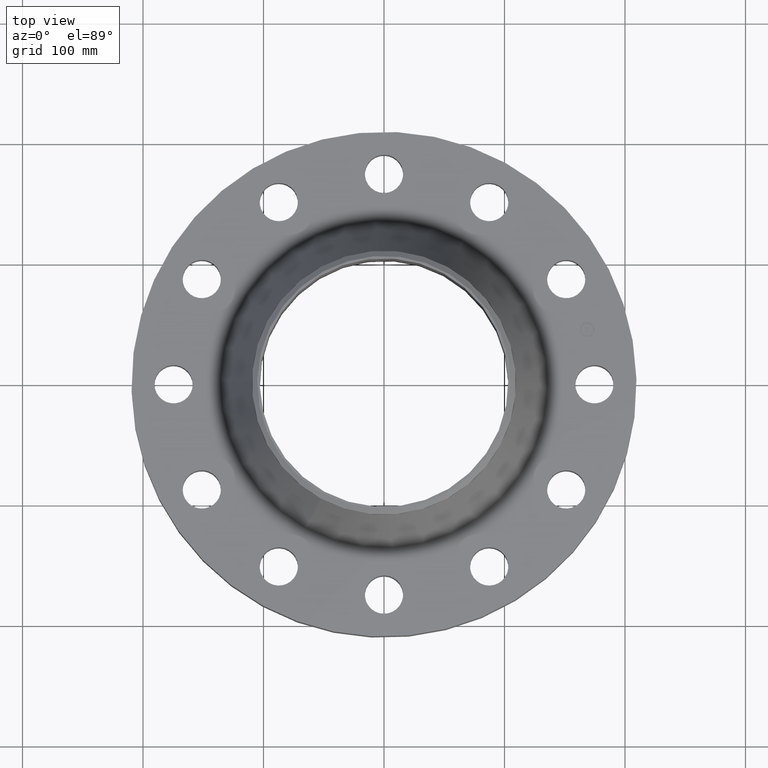
[diagram: clean part render]
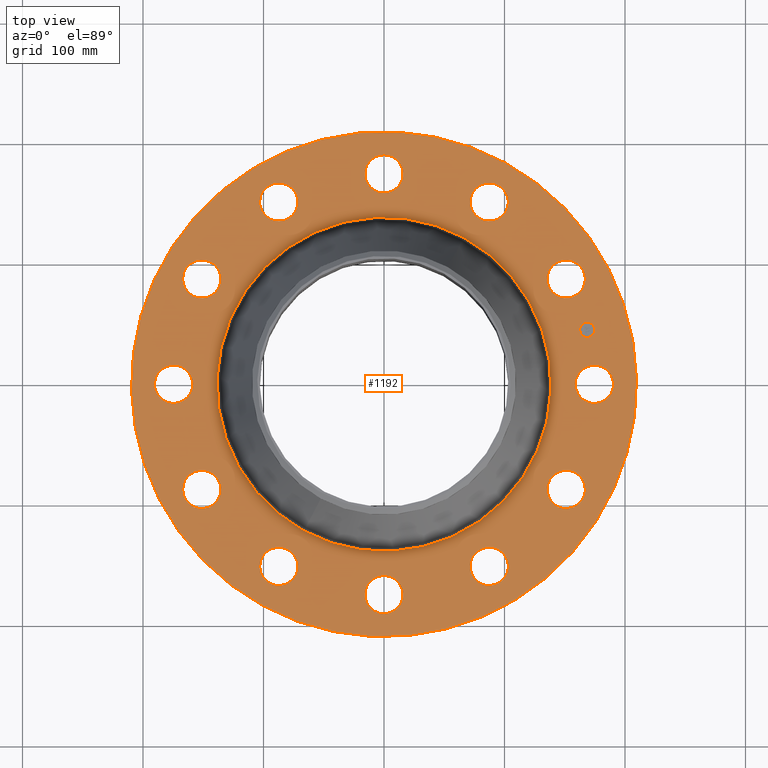
[diagram: same view with one face highlighted and labeled with its STEP entity id]
A machine part, top view. The second image highlights one B-rep face of the part: STEP entity #1192.
In plain terms, the highlighted planar face has unit normal (0, 0, -1).
Its self-contained STEP definition (entity closure, byte-faithful):
#65=AXIS2_PLACEMENT_3D('Circle Axis2P3D',#63,#64,$) ;
#82=AXIS2_PLACEMENT_3D('Circle Axis2P3D',#80,#81,$) ;
#115=AXIS2_PLACEMENT_3D('Circle Axis2P3D',#113,#114,$) ;
#139=AXIS2_PLACEMENT_3D('Circle Axis2P3D',#137,#138,$) ;
#156=AXIS2_PLACEMENT_3D('Circle Axis2P3D',#154,#155,$) ;
#191=AXIS2_PLACEMENT_3D('Circle Axis2P3D',#189,#190,$) ;
#661=AXIS2_PLACEMENT_3D('Circle Axis2P3D',#659,#660,$) ;
#673=AXIS2_PLACEMENT_3D('Circle Axis2P3D',#671,#672,$) ;
#704=AXIS2_PLACEMENT_3D('Circle Axis2P3D',#702,#703,$) ;
#716=AXIS2_PLACEMENT_3D('Circle Axis2P3D',#714,#715,$) ;
#747=AXIS2_PLACEMENT_3D('Circle Axis2P3D',#745,#746,$) ;
#759=AXIS2_PLACEMENT_3D('Circle Axis2P3D',#757,#758,$) ;
#790=AXIS2_PLACEMENT_3D('Circle Axis2P3D',#788,#789,$) ;
#802=AXIS2_PLACEMENT_3D('Circle Axis2P3D',#800,#801,$) ;
#833=AXIS2_PLACEMENT_3D('Circle Axis2P3D',#831,#832,$) ;
#845=AXIS2_PLACEMENT_3D('Circle Axis2P3D',#843,#844,$) ;
#876=AXIS2_PLACEMENT_3D('Circle Axis2P3D',#874,#875,$) ;
#888=AXIS2_PLACEMENT_3D('Circle Axis2P3D',#886,#887,$) ;
#919=AXIS2_PLACEMENT_3D('Circle Axis2P3D',#917,#918,$) ;
#931=AXIS2_PLACEMENT_3D('Circle Axis2P3D',#929,#930,$) ;
#962=AXIS2_PLACEMENT_3D('Circle Axis2P3D',#960,#961,$) ;
#974=AXIS2_PLACEMENT_3D('Circle Axis2P3D',#972,#973,$) ;
#1005=AXIS2_PLACEMENT_3D('Circle Axis2P3D',#1003,#1004,$) ;
#1017=AXIS2_PLACEMENT_3D('Circle Axis2P3D',#1015,#1016,$) ;
#1048=AXIS2_PLACEMENT_3D('Circle Axis2P3D',#1046,#1047,$) ;
#1060=AXIS2_PLACEMENT_3D('Circle Axis2P3D',#1058,#1059,$) ;
#1091=AXIS2_PLACEMENT_3D('Circle Axis2P3D',#1089,#1090,$) ;
#1103=AXIS2_PLACEMENT_3D('Circle Axis2P3D',#1101,#1102,$) ;
#1116=AXIS2_PLACEMENT_3D('Plane Axis2P3D',#1113,#1114,#1115) ;
#1176=AXIS2_PLACEMENT_3D('Circle Axis2P3D',#1174,#1175,$) ;
#1185=AXIS2_PLACEMENT_3D('Circle Axis2P3D',#1183,#1184,$) ;
#46=CARTESIAN_POINT('Vertex',(6.32651089884,0.299640961629,2.19000000001)) ;
#60=CARTESIAN_POINT('Vertex',(7.42348910121,-0.299640961629,2.19000000001)) ;
#63=CARTESIAN_POINT('Axis2P3D Location',(6.87500000003,0.,2.19000000001)) ;
#80=CARTESIAN_POINT('Axis2P3D Location',(6.87500000003,0.,2.19000000001)) ;
#110=CARTESIAN_POINT('Vertex',(-3.9552606935,-7.24005613562,2.19000000001)) ;
#113=CARTESIAN_POINT('Axis2P3D Location',(0.,0.,2.19000000001)) ;
#117=CARTESIAN_POINT('Vertex',(3.9552606935,7.24005613562,2.19000000001)) ;
#137=CARTESIAN_POINT('Axis2P3D Location',(0.,0.,2.19000000001)) ;
#154=CARTESIAN_POINT('Axis2P3D Location',(0.,0.,2.19000000001)) ;
#158=CARTESIAN_POINT('Vertex',(2.61608101445,4.78870417596,2.19000000001)) ;
#160=CARTESIAN_POINT('Vertex',(-2.61608101445,-4.78870417596,2.19000000001)) ;
#189=CARTESIAN_POINT('Axis2P3D Location',(0.,0.,2.19000000001)) ;
#649=CARTESIAN_POINT('Vertex',(-5.62873963653,2.90375876464,2.19000000001)) ;
#656=CARTESIAN_POINT('Vertex',(-6.27910966555,3.97124123539,2.19000000001)) ;
#659=CARTESIAN_POINT('Axis2P3D Location',(-5.95392465104,3.43750000001,2.19000000001)) ;
#671=CARTESIAN_POINT('Axis2P3D Location',(-5.95392465104,3.43750000001,2.19000000001)) ;
#692=CARTESIAN_POINT('Vertex',(3.42275213421,-5.3290986749,2.19000000001)) ;
#699=CARTESIAN_POINT('Vertex',(3.45224786582,-6.57875062718,2.19000000001)) ;
#702=CARTESIAN_POINT('Axis2P3D Location',(3.43750000001,-5.95392465104,2.19000000001)) ;
#714=CARTESIAN_POINT('Axis2P3D Location',(3.43750000001,-5.95392465104,2.19000000001)) ;
#735=CARTESIAN_POINT('Vertex',(-3.42275213421,5.3290986749,2.19000000001)) ;
#742=CARTESIAN_POINT('Vertex',(-3.45224786582,6.57875062718,2.19000000001)) ;
#745=CARTESIAN_POINT('Axis2P3D Location',(-3.43750000001,5.95392465104,2.19000000001)) ;
#757=CARTESIAN_POINT('Axis2P3D Location',(-3.43750000001,5.95392465104,2.19000000001)) ;
#778=CARTESIAN_POINT('Vertex',(0.299640961629,-6.32651089884,2.19000000001)) ;
#785=CARTESIAN_POINT('Vertex',(-0.299640961629,-7.42348910121,2.19000000001)) ;
#788=CARTESIAN_POINT('Axis2P3D Location',(-6.97992600996E-016,-6.87500000003,2.19000000001)) ;
#800=CARTESIAN_POINT('Axis2P3D Location',(-6.97992600996E-016,-6.87500000003,2.19000000001)) ;
#821=CARTESIAN_POINT('Vertex',(-0.299640961629,6.32651089884,2.19000000001)) ;
#828=CARTESIAN_POINT('Vertex',(0.299640961629,7.42348910121,2.19000000001)) ;
#831=CARTESIAN_POINT('Axis2P3D Location',(-1.26291701163E-015,6.87500000003,2.19000000001)) ;
#843=CARTESIAN_POINT('Axis2P3D Location',(-1.26291701163E-015,6.87500000003,2.19000000001)) ;
#864=CARTESIAN_POINT('Vertex',(-2.90375876464,-5.62873963653,2.19000000001)) ;
#871=CARTESIAN_POINT('Vertex',(-3.97124123539,-6.27910966555,2.19000000001)) ;
#874=CARTESIAN_POINT('Axis2P3D Location',(-3.43750000001,-5.95392465104,2.19000000001)) ;
#886=CARTESIAN_POINT('Axis2P3D Location',(-3.43750000001,-5.95392465104,2.19000000001)) ;
#907=CARTESIAN_POINT('Vertex',(2.90375876464,5.62873963653,2.19000000001)) ;
#914=CARTESIAN_POINT('Vertex',(3.97124123539,6.27910966555,2.19000000001)) ;
#917=CARTESIAN_POINT('Axis2P3D Location',(3.43750000001,5.95392465104,2.19000000001)) ;
#929=CARTESIAN_POINT('Axis2P3D Location',(3.43750000001,5.95392465104,2.19000000001)) ;
#950=CARTESIAN_POINT('Vertex',(-5.3290986749,-3.42275213421,2.19000000001)) ;
#957=CARTESIAN_POINT('Vertex',(-6.57875062718,-3.45224786582,2.19000000001)) ;
#960=CARTESIAN_POINT('Axis2P3D Location',(-5.95392465104,-3.43750000001,2.19000000001)) ;
#972=CARTESIAN_POINT('Axis2P3D Location',(-5.95392465104,-3.43750000001,2.19000000001)) ;
#993=CARTESIAN_POINT('Vertex',(5.3290986749,3.42275213421,2.19000000001)) ;
#1000=CARTESIAN_POINT('Vertex',(6.57875062718,3.45224786582,2.19000000001)) ;
#1003=CARTESIAN_POINT('Axis2P3D Location',(5.95392465104,3.43750000001,2.19000000001)) ;
#1015=CARTESIAN_POINT('Axis2P3D Location',(5.95392465104,3.43750000001,2.19000000001)) ;
#1036=CARTESIAN_POINT('Vertex',(-6.32651089884,-0.299640961629,2.19000000001)) ;
#1043=CARTESIAN_POINT('Vertex',(-7.42348910121,0.299640961629,2.19000000001)) ;
#1046=CARTESIAN_POINT('Axis2P3D Location',(-6.87500000003,-8.41944674417E-016,2.19000000001)) ;
#1058=CARTESIAN_POINT('Axis2P3D Location',(-6.87500000003,-8.41944674417E-016,2.19000000001)) ;
#1079=CARTESIAN_POINT('Vertex',(5.62873963653,-2.90375876464,2.19000000001)) ;
#1086=CARTESIAN_POINT('Vertex',(6.27910966555,-3.97124123539,2.19000000001)) ;
#1089=CARTESIAN_POINT('Axis2P3D Location',(5.95392465104,-3.43750000001,2.19000000001)) ;
#1101=CARTESIAN_POINT('Axis2P3D Location',(5.95392465104,-3.43750000001,2.19000000001)) ;
#1113=CARTESIAN_POINT('Axis2P3D Location',(0.,8.25000000003,2.19000000001)) ;
#1174=CARTESIAN_POINT('Axis2P3D Location',(6.64074005576,1.77938093509,2.19000000001)) ;
#1178=CARTESIAN_POINT('Vertex',(6.5766823421,2.01844757709,2.19000000001)) ;
#1180=CARTESIAN_POINT('Vertex',(6.70479776943,1.54031429308,2.19000000001)) ;
#1183=CARTESIAN_POINT('Axis2P3D Location',(6.64074005576,1.77938093509,2.19000000001)) ;
#64=DIRECTION('Axis2P3D Direction',(0.,-0.,-0.0393700787402)) ;
#81=DIRECTION('Axis2P3D Direction',(0.,-0.,-0.0393700787402)) ;
#114=DIRECTION('Axis2P3D Direction',(0.,0.,-0.0393700787402)) ;
#138=DIRECTION('Axis2P3D Direction',(0.,0.,-0.0393700787402)) ;
#155=DIRECTION('Axis2P3D Direction',(0.,0.,-0.0393700787402)) ;
#190=DIRECTION('Axis2P3D Direction',(0.,0.,-0.0393700787402)) ;
#660=DIRECTION('Axis2P3D Direction',(0.,0.,-0.0393700787402)) ;
#672=DIRECTION('Axis2P3D Direction',(0.,0.,-0.0393700787402)) ;
#703=DIRECTION('Axis2P3D Direction',(0.,-0.,-0.0393700787402)) ;
#715=DIRECTION('Axis2P3D Direction',(0.,-0.,-0.0393700787402)) ;
#746=DIRECTION('Axis2P3D Direction',(0.,0.,-0.0393700787402)) ;
#758=DIRECTION('Axis2P3D Direction',(0.,0.,-0.0393700787402)) ;
#789=DIRECTION('Axis2P3D Direction',(0.,-0.,-0.0393700787402)) ;
#801=DIRECTION('Axis2P3D Direction',(0.,-0.,-0.0393700787402)) ;
#832=DIRECTION('Axis2P3D Direction',(0.,0.,-0.0393700787402)) ;
#844=DIRECTION('Axis2P3D Direction',(0.,0.,-0.0393700787402)) ;
#875=DIRECTION('Axis2P3D Direction',(-0.,0.,-0.0393700787402)) ;
#887=DIRECTION('Axis2P3D Direction',(-0.,0.,-0.0393700787402)) ;
#918=DIRECTION('Axis2P3D Direction',(0.,0.,-0.0393700787402)) ;
#930=DIRECTION('Axis2P3D Direction',(0.,0.,-0.0393700787402)) ;
#961=DIRECTION('Axis2P3D Direction',(-0.,0.,-0.0393700787402)) ;
#973=DIRECTION('Axis2P3D Direction',(-0.,0.,-0.0393700787402)) ;
#1004=DIRECTION('Axis2P3D Direction',(0.,0.,-0.0393700787402)) ;
#1016=DIRECTION('Axis2P3D Direction',(0.,0.,-0.0393700787402)) ;
#1047=DIRECTION('Axis2P3D Direction',(-0.,0.,-0.0393700787402)) ;
#1059=DIRECTION('Axis2P3D Direction',(-0.,0.,-0.0393700787402)) ;
#1090=DIRECTION('Axis2P3D Direction',(0.,-0.,-0.0393700787402)) ;
#1102=DIRECTION('Axis2P3D Direction',(0.,-0.,-0.0393700787402)) ;
#1114=DIRECTION('Axis2P3D Direction',(0.,0.,-0.0393700787402)) ;
#1115=DIRECTION('Axis2P3D XDirection',(0.0393700787402,0.,0.)) ;
#1175=DIRECTION('Axis2P3D Direction',(0.,0.,-0.0393700787402)) ;
#1184=DIRECTION('Axis2P3D Direction',(0.,0.,-0.0393700787402)) ;
#1119=ORIENTED_EDGE('',*,*,#141,.F.) ;
#1120=ORIENTED_EDGE('',*,*,#119,.F.) ;
#1123=ORIENTED_EDGE('',*,*,#67,.T.) ;
#1124=ORIENTED_EDGE('',*,*,#84,.T.) ;
#1127=ORIENTED_EDGE('',*,*,#193,.T.) ;
#1128=ORIENTED_EDGE('',*,*,#162,.T.) ;
#1131=ORIENTED_EDGE('',*,*,#1105,.T.) ;
#1132=ORIENTED_EDGE('',*,*,#1093,.T.) ;
#1135=ORIENTED_EDGE('',*,*,#718,.T.) ;
#1136=ORIENTED_EDGE('',*,*,#706,.T.) ;
#1139=ORIENTED_EDGE('',*,*,#804,.T.) ;
#1140=ORIENTED_EDGE('',*,*,#792,.T.) ;
#1143=ORIENTED_EDGE('',*,*,#890,.T.) ;
#1144=ORIENTED_EDGE('',*,*,#878,.T.) ;
#1147=ORIENTED_EDGE('',*,*,#976,.T.) ;
#1148=ORIENTED_EDGE('',*,*,#964,.T.) ;
#1151=ORIENTED_EDGE('',*,*,#1062,.T.) ;
#1152=ORIENTED_EDGE('',*,*,#1050,.T.) ;
#1155=ORIENTED_EDGE('',*,*,#675,.T.) ;
#1156=ORIENTED_EDGE('',*,*,#663,.T.) ;
#1159=ORIENTED_EDGE('',*,*,#761,.T.) ;
#1160=ORIENTED_EDGE('',*,*,#749,.T.) ;
#1163=ORIENTED_EDGE('',*,*,#847,.T.) ;
#1164=ORIENTED_EDGE('',*,*,#835,.T.) ;
#1167=ORIENTED_EDGE('',*,*,#933,.T.) ;
#1168=ORIENTED_EDGE('',*,*,#921,.T.) ;
#1171=ORIENTED_EDGE('',*,*,#1019,.T.) ;
#1172=ORIENTED_EDGE('',*,*,#1007,.T.) ;
#1189=ORIENTED_EDGE('',*,*,#1182,.T.) ;
#1190=ORIENTED_EDGE('',*,*,#1187,.T.) ;
#1125=FACE_BOUND('',#1122,.T.) ;
#1129=FACE_BOUND('',#1126,.T.) ;
#1133=FACE_BOUND('',#1130,.T.) ;
#1137=FACE_BOUND('',#1134,.T.) ;
#1141=FACE_BOUND('',#1138,.T.) ;
#1145=FACE_BOUND('',#1142,.T.) ;
#1149=FACE_BOUND('',#1146,.T.) ;
#1153=FACE_BOUND('',#1150,.T.) ;
#1157=FACE_BOUND('',#1154,.T.) ;
#1161=FACE_BOUND('',#1158,.T.) ;
#1165=FACE_BOUND('',#1162,.T.) ;
#1169=FACE_BOUND('',#1166,.T.) ;
#1173=FACE_BOUND('',#1170,.T.) ;
#1191=FACE_BOUND('',#1188,.T.) ;
#1192=ADVANCED_FACE('PartBody',(#1121,#1125,#1129,#1133,#1137,#1141,#1145,#1149,#1153,#1157,#1161,#1165,#1169,#1173,#1191),#1117,.F.) ;
#66=CIRCLE('generated circle',#65,0.625000000002) ;
#83=CIRCLE('generated circle',#82,0.625000000002) ;
#116=CIRCLE('generated circle',#115,8.25000000003) ;
#140=CIRCLE('generated circle',#139,8.25000000003) ;
#157=CIRCLE('generated circle',#156,5.45669932826) ;
#192=CIRCLE('generated circle',#191,5.45669932826) ;
#662=CIRCLE('generated circle',#661,0.625000000003) ;
#674=CIRCLE('generated circle',#673,0.625000000003) ;
#705=CIRCLE('generated circle',#704,0.625000000003) ;
#717=CIRCLE('generated circle',#716,0.625000000003) ;
#748=CIRCLE('generated circle',#747,0.625000000003) ;
#760=CIRCLE('generated circle',#759,0.625000000003) ;
#791=CIRCLE('generated circle',#790,0.625000000002) ;
#803=CIRCLE('generated circle',#802,0.625000000002) ;
#834=CIRCLE('generated circle',#833,0.625000000002) ;
#846=CIRCLE('generated circle',#845,0.625000000002) ;
#877=CIRCLE('generated circle',#876,0.625000000003) ;
#889=CIRCLE('generated circle',#888,0.625000000003) ;
#920=CIRCLE('generated circle',#919,0.625000000003) ;
#932=CIRCLE('generated circle',#931,0.625000000003) ;
#963=CIRCLE('generated circle',#962,0.625000000003) ;
#975=CIRCLE('generated circle',#974,0.625000000003) ;
#1006=CIRCLE('generated circle',#1005,0.625000000003) ;
#1018=CIRCLE('generated circle',#1017,0.625000000003) ;
#1049=CIRCLE('generated circle',#1048,0.625000000002) ;
#1061=CIRCLE('generated circle',#1060,0.625000000002) ;
#1092=CIRCLE('generated circle',#1091,0.625000000003) ;
#1104=CIRCLE('generated circle',#1103,0.625000000003) ;
#1177=CIRCLE('generated circle',#1176,0.247500000001) ;
#1186=CIRCLE('generated circle',#1185,0.247500000001) ;
#67=EDGE_CURVE('',#47,#61,#66,.T.) ;
#84=EDGE_CURVE('',#61,#47,#83,.T.) ;
#119=EDGE_CURVE('',#111,#118,#116,.T.) ;
#141=EDGE_CURVE('',#118,#111,#140,.T.) ;
#162=EDGE_CURVE('',#159,#161,#157,.T.) ;
#193=EDGE_CURVE('',#161,#159,#192,.T.) ;
#663=EDGE_CURVE('',#650,#657,#662,.T.) ;
#675=EDGE_CURVE('',#657,#650,#674,.T.) ;
#706=EDGE_CURVE('',#693,#700,#705,.T.) ;
#718=EDGE_CURVE('',#700,#693,#717,.T.) ;
#749=EDGE_CURVE('',#736,#743,#748,.T.) ;
#761=EDGE_CURVE('',#743,#736,#760,.T.) ;
#792=EDGE_CURVE('',#779,#786,#791,.T.) ;
#804=EDGE_CURVE('',#786,#779,#803,.T.) ;
#835=EDGE_CURVE('',#822,#829,#834,.T.) ;
#847=EDGE_CURVE('',#829,#822,#846,.T.) ;
#878=EDGE_CURVE('',#865,#872,#877,.T.) ;
#890=EDGE_CURVE('',#872,#865,#889,.T.) ;
#921=EDGE_CURVE('',#908,#915,#920,.T.) ;
#933=EDGE_CURVE('',#915,#908,#932,.T.) ;
#964=EDGE_CURVE('',#951,#958,#963,.T.) ;
#976=EDGE_CURVE('',#958,#951,#975,.T.) ;
#1007=EDGE_CURVE('',#994,#1001,#1006,.T.) ;
#1019=EDGE_CURVE('',#1001,#994,#1018,.T.) ;
#1050=EDGE_CURVE('',#1037,#1044,#1049,.T.) ;
#1062=EDGE_CURVE('',#1044,#1037,#1061,.T.) ;
#1093=EDGE_CURVE('',#1080,#1087,#1092,.T.) ;
#1105=EDGE_CURVE('',#1087,#1080,#1104,.T.) ;
#1182=EDGE_CURVE('',#1179,#1181,#1177,.T.) ;
#1187=EDGE_CURVE('',#1181,#1179,#1186,.T.) ;
#1118=EDGE_LOOP('',(#1119,#1120)) ;
#1122=EDGE_LOOP('',(#1123,#1124)) ;
#1126=EDGE_LOOP('',(#1127,#1128)) ;
#1130=EDGE_LOOP('',(#1131,#1132)) ;
#1134=EDGE_LOOP('',(#1135,#1136)) ;
#1138=EDGE_LOOP('',(#1139,#1140)) ;
#1142=EDGE_LOOP('',(#1143,#1144)) ;
#1146=EDGE_LOOP('',(#1147,#1148)) ;
#1150=EDGE_LOOP('',(#1151,#1152)) ;
#1154=EDGE_LOOP('',(#1155,#1156)) ;
#1158=EDGE_LOOP('',(#1159,#1160)) ;
#1162=EDGE_LOOP('',(#1163,#1164)) ;
#1166=EDGE_LOOP('',(#1167,#1168)) ;
#1170=EDGE_LOOP('',(#1171,#1172)) ;
#1188=EDGE_LOOP('',(#1189,#1190)) ;
#1121=FACE_OUTER_BOUND('',#1118,.T.) ;
#1117=PLANE('',#1116) ;
#47=VERTEX_POINT('',#46) ;
#61=VERTEX_POINT('',#60) ;
#111=VERTEX_POINT('',#110) ;
#118=VERTEX_POINT('',#117) ;
#159=VERTEX_POINT('',#158) ;
#161=VERTEX_POINT('',#160) ;
#650=VERTEX_POINT('',#649) ;
#657=VERTEX_POINT('',#656) ;
#693=VERTEX_POINT('',#692) ;
#700=VERTEX_POINT('',#699) ;
#736=VERTEX_POINT('',#735) ;
#743=VERTEX_POINT('',#742) ;
#779=VERTEX_POINT('',#778) ;
#786=VERTEX_POINT('',#785) ;
#822=VERTEX_POINT('',#821) ;
#829=VERTEX_POINT('',#828) ;
#865=VERTEX_POINT('',#864) ;
#872=VERTEX_POINT('',#871) ;
#908=VERTEX_POINT('',#907) ;
#915=VERTEX_POINT('',#914) ;
#951=VERTEX_POINT('',#950) ;
#958=VERTEX_POINT('',#957) ;
#994=VERTEX_POINT('',#993) ;
#1001=VERTEX_POINT('',#1000) ;
#1037=VERTEX_POINT('',#1036) ;
#1044=VERTEX_POINT('',#1043) ;
#1080=VERTEX_POINT('',#1079) ;
#1087=VERTEX_POINT('',#1086) ;
#1179=VERTEX_POINT('',#1178) ;
#1181=VERTEX_POINT('',#1180) ;